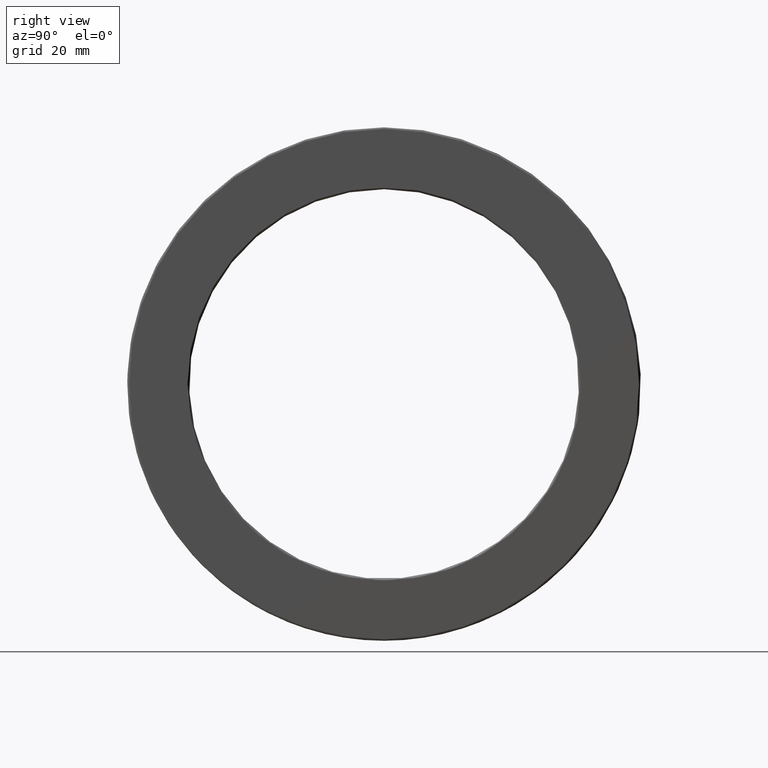
[diagram: clean part render]
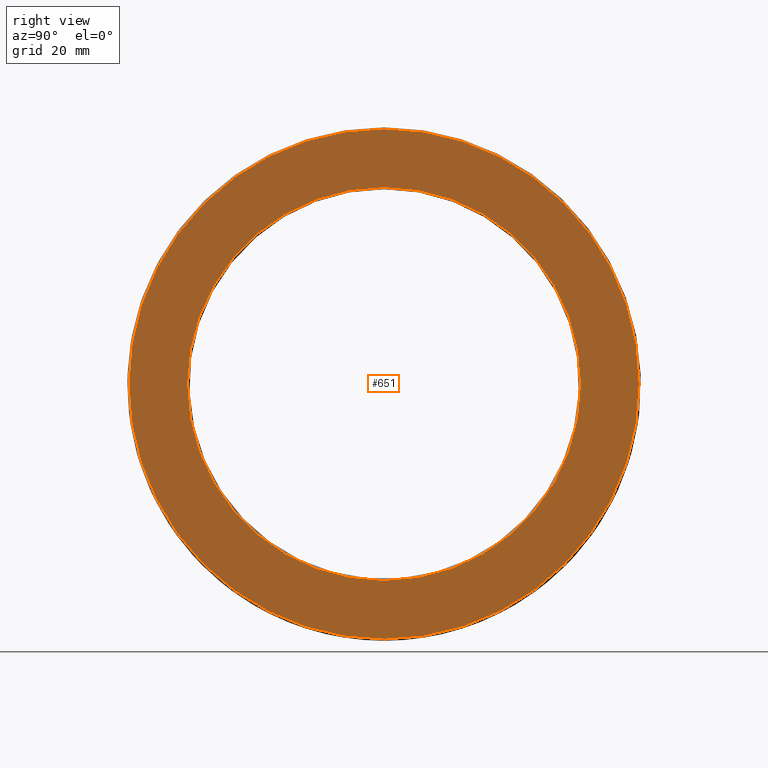
[diagram: same view with one face highlighted and labeled with its STEP entity id]
A machine part, right view. The second image highlights one B-rep face of the part: STEP entity #651.
In plain terms, the highlighted planar face has unit normal (1, 0, 0).
Its self-contained STEP definition (entity closure, byte-faithful):
#3 = EDGE_CURVE ( 'NONE', #237, #237, #819, .T. ) ;
#41 = CIRCLE ( 'NONE', #494, 2.185499999999999800 ) ;
#70 = EDGE_LOOP ( 'NONE', ( #297 ) ) ;
#85 = DIRECTION ( 'NONE',  ( 0.0000000000000000000, 0.0000000000000000000, 1.000000000000000000 ) ) ;
#129 = ORIENTED_EDGE ( 'NONE', *, *, #621, .T. ) ;
#237 = VERTEX_POINT ( 'NONE', #415 ) ;
#275 = FACE_OUTER_BOUND ( 'NONE', #70, .T. ) ;
#297 = ORIENTED_EDGE ( 'NONE', *, *, #3, .F. ) ;
#317 = DIRECTION ( 'NONE',  ( -1.000000000000000000, -0.0000000000000000000, -0.0000000000000000000 ) ) ;
#326 = DIRECTION ( 'NONE',  ( 0.0000000000000000000, 0.0000000000000000000, 1.000000000000000000 ) ) ;
#336 = CARTESIAN_POINT ( 'NONE',  ( 0.4919999999999998800, 0.0000000000000000000, 0.0000000000000000000 ) ) ;
#344 = VERTEX_POINT ( 'NONE', #538 ) ;
#415 = CARTESIAN_POINT ( 'NONE',  ( 0.4919999999999998800, 0.0000000000000000000, 2.834500000000000700 ) ) ;
#420 = EDGE_LOOP ( 'NONE', ( #129 ) ) ;
#494 = AXIS2_PLACEMENT_3D ( 'NONE', #687, #317, #326 ) ;
#512 = DIRECTION ( 'NONE',  ( 1.000000000000000000, 0.0000000000000000000, 0.0000000000000000000 ) ) ;
#524 = AXIS2_PLACEMENT_3D ( 'NONE', #698, #512, #775 ) ;
#538 = CARTESIAN_POINT ( 'NONE',  ( 0.4920000000000003300, 0.0000000000000000000, 2.185499999999999800 ) ) ;
#574 = PLANE ( 'NONE',  #524 ) ;
#602 = FACE_BOUND ( 'NONE', #420, .T. ) ;
#621 = EDGE_CURVE ( 'NONE', #344, #344, #41, .T. ) ;
#651 = ADVANCED_FACE ( 'NONE', ( #602, #275 ), #574, .T. ) ;
#687 = CARTESIAN_POINT ( 'NONE',  ( 0.4920000000000003300, 0.0000000000000000000, 0.0000000000000000000 ) ) ;
#695 = DIRECTION ( 'NONE',  ( -1.000000000000000000, -0.0000000000000000000, -0.0000000000000000000 ) ) ;
#698 = CARTESIAN_POINT ( 'NONE',  ( 0.4920000000000001000, 3.106477379544270100E-016, 0.0000000000000000000 ) ) ;
#728 = AXIS2_PLACEMENT_3D ( 'NONE', #336, #695, #85 ) ;
#775 = DIRECTION ( 'NONE',  ( 0.0000000000000000000, 0.0000000000000000000, -1.000000000000000000 ) ) ;
#819 = CIRCLE ( 'NONE', #728, 2.834500000000000700 ) ;